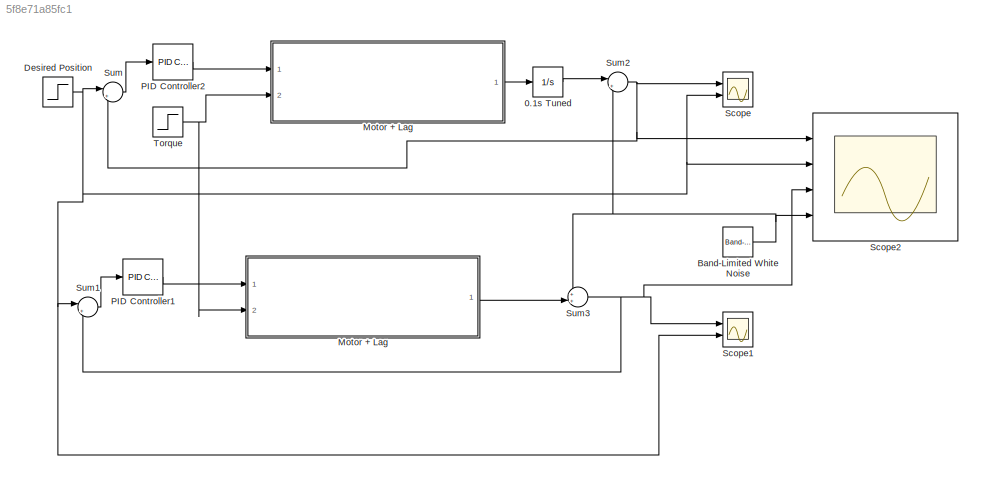
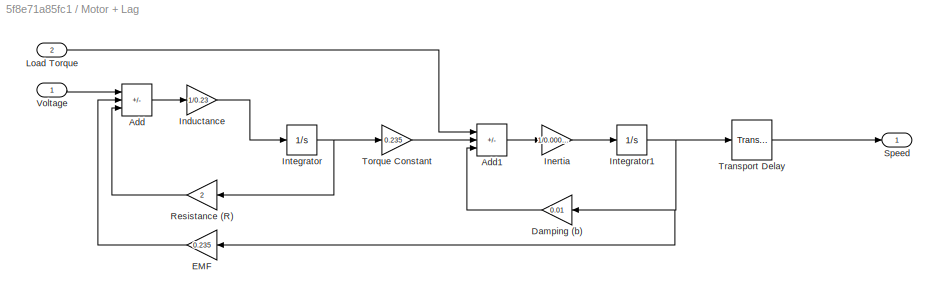
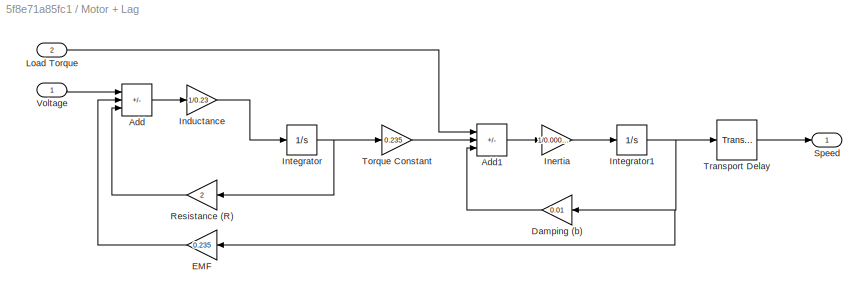
MODEL slx_5f8e71a85fc1
KIND model
CONFIG AbsTol = auto
CONFIG EnableMultiTasking = off
CONFIG FixedStep = auto
CONFIG MaxStep = auto
CONFIG MinStep = auto
CONFIG RelTol = 1e-3
CONFIG SampleTimeConstraint = Unconstrained
CONFIG SolverName = VariableStepAuto
CONFIG StartTime = 0.0
CONFIG StopTime = 5
BLOCK [Integrator] 0.1s Tuned
  Ports = [1, 1]
BLOCK [Reference] Band-Limited White Noise  REF=simulink/Sources/Band-Limited
White Noise
  Ports = [0, 1]
  SourceBlock = simulink/Sources/Band-Limited\nWhite Noise
  SourceProductBaseCode = SL
  SourceType = Band-Limited White Noise.
BLOCK [Step] Desired Position
  After = 10
  NameLocation = top
  SampleTime = 0
BLOCK [SubSystem] Motor + Lag
  Ports = [2, 1]
  RequestExecContextInheritance = off
BLOCK [SubSystem] Motor + Lag  
  Ports = [2, 1]
  RequestExecContextInheritance = off
BLOCK [Sum] Motor + Lag  /Add
  IconShape = rectangular
  Inputs = +--
  Ports = [3, 1]
BLOCK [Sum] Motor + Lag  /Add1
  IconShape = rectangular
  Inputs = -+-
  Ports = [3, 1]
BLOCK [Gain] Motor + Lag  /Damping (b)
  Gain = 0.01
  NameLocation = top
BLOCK [Gain] Motor + Lag  /EMF
  Gain = 0.235
  NameLocation = top
BLOCK [Gain] Motor + Lag  /Inductance
  Gain = 1/0.23
BLOCK [Gain] Motor + Lag  /Inertia 
  Gain = 1/0.000052
BLOCK [Integrator] Motor + Lag  /Integrator
  Ports = [1, 1]
BLOCK [Integrator] Motor + Lag  /Integrator1
  Ports = [1, 1]
BLOCK [Inport] Motor + Lag  /Load Torque 
  Port = 2
BLOCK [Gain] Motor + Lag  /Resistance (R)
  Gain = 2
  NameLocation = top
BLOCK [Outport] Motor + Lag  /Speed 
  VectorParamsAs1DForOutWhenUnconnected = off
BLOCK [Gain] Motor + Lag  /Torque Constant
  Gain = 0.235
BLOCK [TransportDelay] Motor + Lag  /Transport Delay
  DelayTime = 0.1
  Ports = [1, 1]
BLOCK [Inport] Motor + Lag  /Voltage
BLOCK [Sum] Motor + Lag/Add
  IconShape = rectangular
  Inputs = +--
  Ports = [3, 1]
BLOCK [Sum] Motor + Lag/Add1
  IconShape = rectangular
  Inputs = -+-
  Ports = [3, 1]
BLOCK [Gain] Motor + Lag/Damping (b)
  Gain = 0.01
  NameLocation = top
BLOCK [Gain] Motor + Lag/EMF
  Gain = 0.235
  NameLocation = top
BLOCK [Gain] Motor + Lag/Inductance
  Gain = 1/0.23
BLOCK [Gain] Motor + Lag/Inertia 
  Gain = 1/0.000052
BLOCK [Integrator] Motor + Lag/Integrator
  Ports = [1, 1]
BLOCK [Integrator] Motor + Lag/Integrator1
  Ports = [1, 1]
BLOCK [Inport] Motor + Lag/Load Torque 
  Port = 2
BLOCK [Gain] Motor + Lag/Resistance (R)
  Gain = 2
  NameLocation = top
BLOCK [Outport] Motor + Lag/Speed 
  VectorParamsAs1DForOutWhenUnconnected = off
BLOCK [Gain] Motor + Lag/Torque Constant
  Gain = 0.235
BLOCK [TransportDelay] Motor + Lag/Transport Delay
  DelayTime = 0.1
  Ports = [1, 1]
BLOCK [Inport] Motor + Lag/Voltage
BLOCK [Reference] PID Controller1  REF=pid_lib/PID Controller
  Ports = [1, 1]
  SourceBlock = pid_lib/PID Controller
  SourceProductBaseCode = SL
  SourceType = PID 1dof
BLOCK [Reference] PID Controller2  REF=pid_lib/PID Controller
  Ports = [1, 1]
  SourceBlock = pid_lib/PID Controller
  SourceProductBaseCode = SL
  SourceType = PID 1dof
BLOCK [Scope] Scope
  Floating = off
  NumInputPorts = 2
  Ports = [2]
  ScopeSpecificationString = Simulink.scopes.TimeScopeBlockCfg('CurrentConfiguration', extmgr.ConfigurationSet(extmgr.Configuration('Core','General UI',true),extmgr.Configuration('Core','Source UI',true),extmgr.Configuration('Sources','WiredSimulink',true),extmgr.Configuration('Visuals','Time Domain',true,'SerializedDisplays',{struct('MinYLimReal','-2.16749','MaxYLimReal','19.50737','YLabelReal','','MinYLimMag','0.00000','Max...<+1418ch>
BLOCK [Scope] Scope1
  Floating = off
  NumInputPorts = 2
  Ports = [2]
  ScopeSpecificationString = Simulink.scopes.TimeScopeBlockCfg('CurrentConfiguration', extmgr.ConfigurationSet(extmgr.Configuration('Core','General UI',true),extmgr.Configuration('Core','Source UI',true),extmgr.Configuration('Sources','WiredSimulink',true,'DataLoggingVariableName','ScopeData1'),extmgr.Configuration('Visuals','Time Domain',true,'SerializedDisplays',{struct('MinYLimReal','-2.16749','MaxYLimReal','19.50737','YLa...<+1457ch>
BLOCK [Scope] Scope2
  Floating = off
  NumInputPorts = 4
  Ports = [4]
  ScopeSpecificationString = Simulink.scopes.TimeScopeBlockCfg('CurrentConfiguration', extmgr.ConfigurationSet(extmgr.Configuration('Core','General UI',true),extmgr.Configuration('Core','Source UI',true),extmgr.Configuration('Sources','WiredSimulink',true,'DataLoggingVariableName','ScopeData2'),extmgr.Configuration('Visuals','Time Domain',true,'SerializedDisplays',{struct('MinYLimReal','-14.46671','MaxYLimReal','39.26979','YL...<+1897ch>
BLOCK [Sum] Sum
  Inputs = |+-
  Ports = [2, 1]
BLOCK [Sum] Sum1
  Inputs = |+-
  Ports = [2, 1]
BLOCK [Sum] Sum2
  AttributesFormatString = Name=%<Position>
  Commented = on
  Inputs = |++
  NameLocation = top
  Ports = [2, 1]
BLOCK [Sum] Sum3
  AttributesFormatString = Name=%<Velocity>
  Inputs = ++|
  NameLocation = top
  Ports = [2, 1]
BLOCK [Step] Torque 
  After = 0
  SampleTime = 0
  Time = 20
LINE 0.1s Tuned:1 -> Sum2:1
NET Band-Limited White Noise:1 -> Scope2:4, Sum2:2, Sum3:1
NET Desired Position:1 -> Scope1:2, Scope2:2, Scope:2, Sum1:1, Sum:1
LINE Motor + Lag  /Add1:1 -> Motor + Lag  /Inertia :1
LINE Motor + Lag  /Add:1 -> Motor + Lag  /Inductance:1
LINE Motor + Lag  /Damping (b):1 -> Motor + Lag  /Add1:3
LINE Motor + Lag  /EMF:1 -> Motor + Lag  /Add:2
LINE Motor + Lag  /Inductance:1 -> Motor + Lag  /Integrator:1
LINE Motor + Lag  /Inertia :1 -> Motor + Lag  /Integrator1:1
NET Motor + Lag  /Integrator1:1 -> Motor + Lag  /Damping (b):1, Motor + Lag  /EMF:1, Motor + Lag  /Transport Delay:1
NET Motor + Lag  /Integrator:1 -> Motor + Lag  /Resistance (R):1, Motor + Lag  /Torque Constant:1
LINE Motor + Lag  /Load Torque :1 -> Motor + Lag  /Add1:1
LINE Motor + Lag  /Resistance (R):1 -> Motor + Lag  /Add:3
LINE Motor + Lag  /Torque Constant:1 -> Motor + Lag  /Add1:2
LINE Motor + Lag  /Transport Delay:1 -> Motor + Lag  /Speed :1
LINE Motor + Lag  /Voltage:1 -> Motor + Lag  /Add:1
LINE Motor + Lag  :1 -> 0.1s Tuned:1
LINE Motor + Lag/Add1:1 -> Motor + Lag/Inertia :1
LINE Motor + Lag/Add:1 -> Motor + Lag/Inductance:1
LINE Motor + Lag/Damping (b):1 -> Motor + Lag/Add1:3
LINE Motor + Lag/EMF:1 -> Motor + Lag/Add:2
LINE Motor + Lag/Inductance:1 -> Motor + Lag/Integrator:1
LINE Motor + Lag/Inertia :1 -> Motor + Lag/Integrator1:1
NET Motor + Lag/Integrator1:1 -> Motor + Lag/Damping (b):1, Motor + Lag/EMF:1, Motor + Lag/Transport Delay:1
NET Motor + Lag/Integrator:1 -> Motor + Lag/Resistance (R):1, Motor + Lag/Torque Constant:1
LINE Motor + Lag/Load Torque :1 -> Motor + Lag/Add1:1
LINE Motor + Lag/Resistance (R):1 -> Motor + Lag/Add:3
LINE Motor + Lag/Torque Constant:1 -> Motor + Lag/Add1:2
LINE Motor + Lag/Transport Delay:1 -> Motor + Lag/Speed :1
LINE Motor + Lag/Voltage:1 -> Motor + Lag/Add:1
LINE Motor + Lag:1 -> Sum3:2
LINE PID Controller1:1 -> Motor + Lag:1
LINE PID Controller2:1 -> Motor + Lag  :1
LINE Sum1:1 -> PID Controller1:1
NET Sum2:1 -> Scope2:1, Scope:1, Sum:2
NET Sum3:1 -> Scope1:1, Scope2:3, Sum1:2
LINE Sum:1 -> PID Controller2:1
NET Torque :1 -> Motor + Lag  :2, Motor + Lag:2
note: NET lines group one-source signal fan-out (src -> all destinations, sorted); 1:1 wires keep LINE
